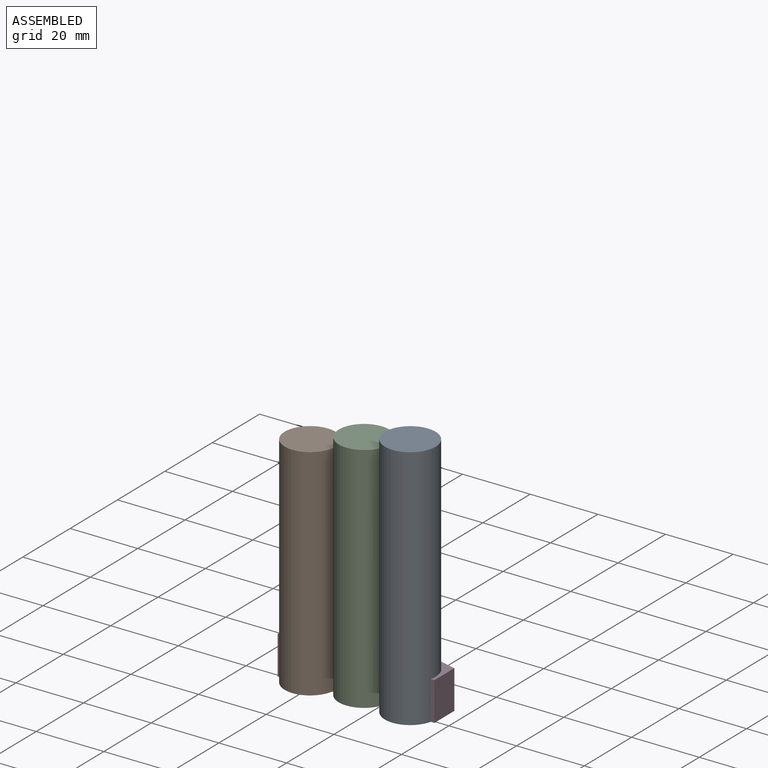
[diagram: assembled view]
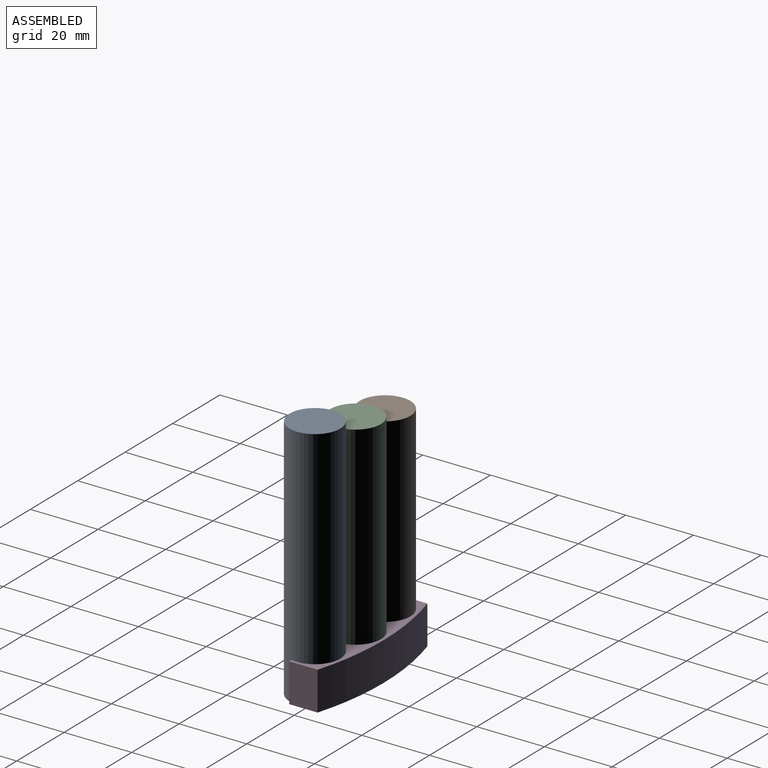
[diagram: assembled view, second angle]
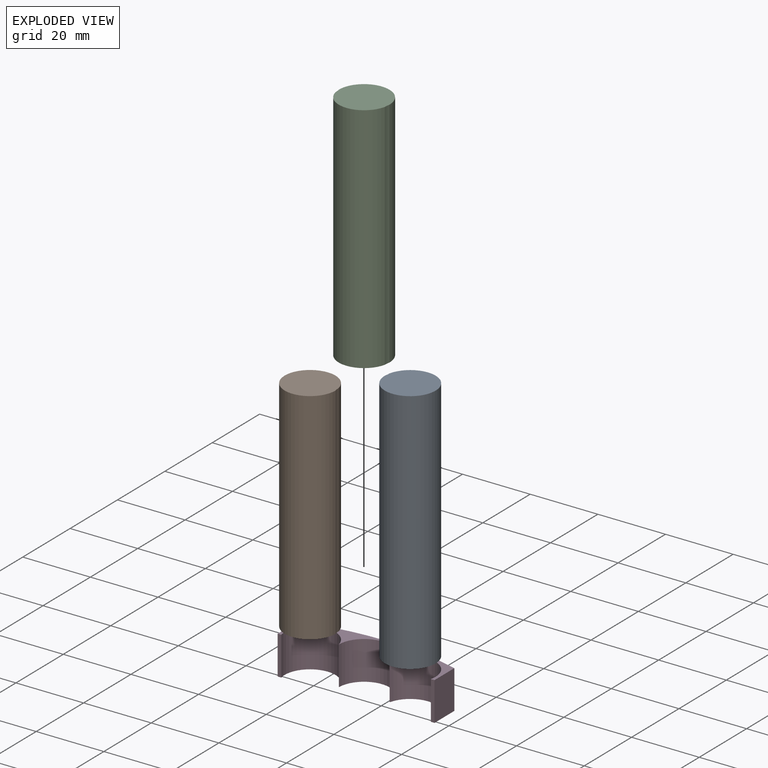
[diagram: exploded view]
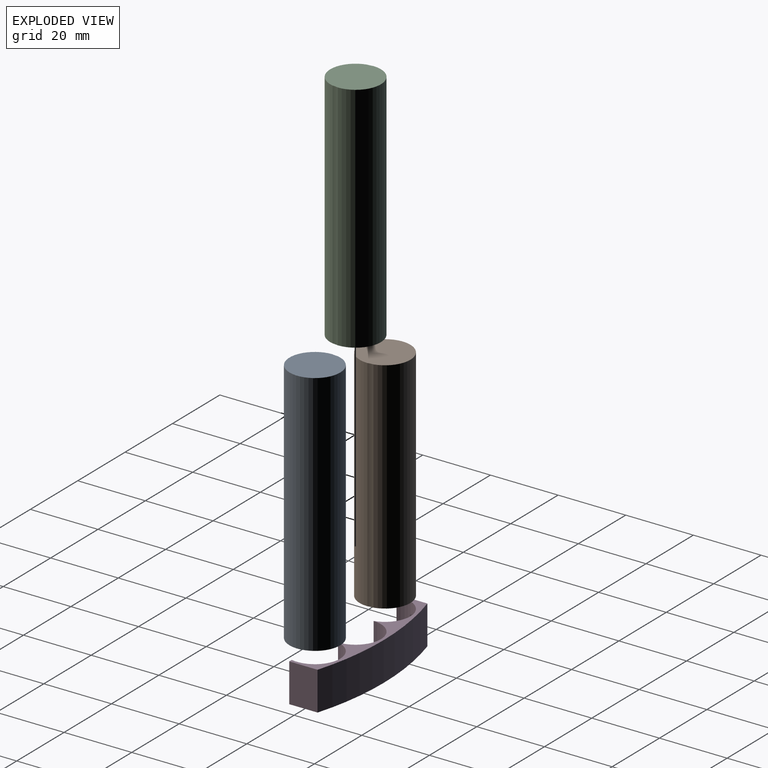
[diagram: exploded view, second angle]
ASSEMBLY  parts=4 mates=3
PART A: 7 faces, bbox 15x15x72.9 mm
  f0: plane 15x15mm, normal (0,0,-1), area 34.1mm2, adj f1,f2,f4,f5
  f1: cylinder r=7.5mm len=72.9mm, axis (0,0,-1), area 124.6mm2, adj f0,f2,f3
  f2: cylinder r=7.5mm len=72.9mm, axis (0,0,-1), area 3310.8mm2, adj f0,f1,f3
  f3: plane 15x15mm, normal (0,0,1), area 176.6mm2, adj f1,f2
  f4: cylinder r=8.26mm len=72.14mm, axis (0,0,-1), area 122.6mm2, adj f0,f5,f6
  f5: cylinder r=6.74mm len=72.14mm, axis (0,0,-1), area 2931.4mm2, adj f0,f4,f6
  f6: plane 13.48x13.48mm, normal (0,0,-1), area 142.5mm2, adj f4,f5
PART B: 7 faces, bbox 15x15x65 mm
  f0: plane 15x15mm, normal (0,0,-1), area 34.1mm2, adj f1,f2,f4,f5
  f1: cylinder r=7.5mm len=65mm, axis (0,0,-1), area 111.1mm2, adj f0,f2,f3
  f2: cylinder r=7.5mm len=65mm, axis (0,0,-1), area 2952mm2, adj f0,f1,f3
  f3: plane 15x15mm, normal (0,0,1), area 176.6mm2, adj f1,f2
  f4: cylinder r=8.26mm len=64.24mm, axis (0,0,-1), area 109.1mm2, adj f0,f5,f6
  f5: cylinder r=6.74mm len=64.24mm, axis (0,0,-1), area 2610.3mm2, adj f0,f4,f6
  f6: plane 13.48x13.48mm, normal (0,0,-1), area 142.5mm2, adj f4,f5
PART C: 11 faces, bbox 15x15x68.9 mm
  f0: plane 15x15mm, normal (0,0,-1), area 34.1mm2, adj f1,f2,f3,f4,f6,f7,f8,f9
  f1: cylinder r=7.5mm len=68.9mm, axis (0,0,-1), area 117.7mm2, adj f0,f2,f4,f5
  f2: cylinder r=7.5mm len=68.9mm, axis (0,0,-1), area 1387.9mm2, adj f0,f1,f3,f5
  f3: cylinder r=7.5mm len=68.9mm, axis (0,0,-1), area 117.7mm2, adj f0,f2,f4,f5
  f4: cylinder r=7.5mm len=68.9mm, axis (0,0,-1), area 1623.4mm2, adj f0,f1,f3,f5
  f5: plane 15x15mm, normal (0,0,1), area 176.5mm2, adj f1,f2,f3,f4
  f6: cylinder r=8.26mm len=68.14mm, axis (0,0,-1), area 115.8mm2, adj f0,f7,f9,f10
  f7: cylinder r=6.74mm len=68.14mm, axis (0,0,-1), area 1221.9mm2, adj f0,f6,f8,f10
  f8: cylinder r=8.26mm len=68.14mm, axis (0,0,-1), area 115.8mm2, adj f0,f7,f9,f10
  f9: cylinder r=6.74mm len=68.14mm, axis (0,0,-1), area 1431.1mm2, adj f0,f6,f8,f10
  f10: plane 13.48x13.48mm, normal (0,0,-1), area 142.4mm2, adj f6,f7,f8,f9
PART D: 10 faces, bbox 46.4x11.7x11.4 mm
  f0: cylinder r=7.51mm len=15.01mm, axis (0,0,1), area 268.2mm2, adj f1,f7,f8,f9
  f1: cylinder r=7.5mm len=14.8mm, axis (0,0,1), area 269.4mm2, adj f0,f2,f8,f9
  f2: plane 11.43x1.08mm, normal (0,-1,0), area 12.3mm2, adj f1,f3,f8,f9
  f3: plane 11.43x8.38mm, normal (1,0,0), area 95.8mm2, adj f2,f4,f8,f9
  f4: cylinder r=81.51mm len=46.36mm, axis (0,0,1), area 537.4mm2, adj f3,f5,f8,f9
  f5: plane 11.43x8.38mm, normal (-1,0,0), area 95.8mm2, adj f4,f6,f8,f9
  f6: plane 11.43x1.08mm, normal (0,-1,0), area 12.3mm2, adj f5,f7,f8,f9
  f7: cylinder r=7.5mm len=14.8mm, axis (0,0,1), area 269.4mm2, adj f0,f6,f8,f9
  f8: plane 46.36x11.75mm, normal (0,0,-1), area 126.5mm2, adj f0,f1,f2,f3,f4,f5,f6,f7
  f9: plane 46.36x11.75mm, normal (0,0,1), area 126.5mm2, adj f0,f1,f2,f3,f4,f5,f6,f7
PLACE A t=(54.64,0.45,15.24)mm
PLACE B t=(54.64,0.45,15.24)mm
PLACE C t=(54.64,0.42,15.24)mm
PLACE D t=(54.64,0.42,1.27)mm
MATE fastened A.f2 <-> D.f1  axis (0,0,-1) through (69.45,-1.24,15.24)mm
MATE fastened C.f2 <-> D.f0  axis (0,0,-1) through (54.64,0.42,15.24)mm
MATE fastened B.f2 <-> D.f7  axis (0,0,-1) through (39.83,-1.24,15.24)mm
